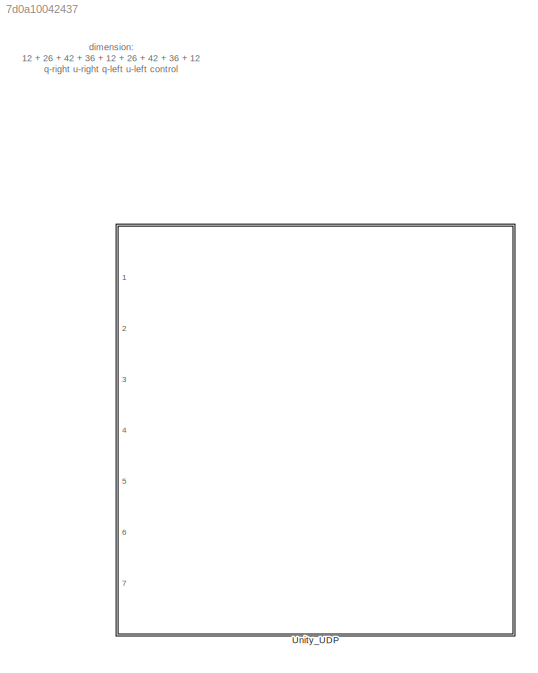
MODEL slx_7d0a10042437
KIND library
CONFIG AbsTol = auto
CONFIG EnableMultiTasking = off
CONFIG FixedStep = auto
CONFIG MaxStep = auto
CONFIG MinStep = auto
CONFIG RelTol = 1e-3
CONFIG SampleTimeConstraint = Unconstrained
CONFIG SolverName = VariableStepAuto
CONFIG StartTime = 0.0
CONFIG StopTime = 10.0
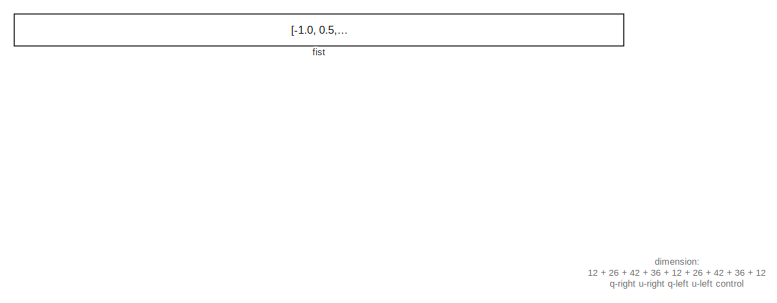
[diagram: Unity_UDP - part 1/2, top left region]
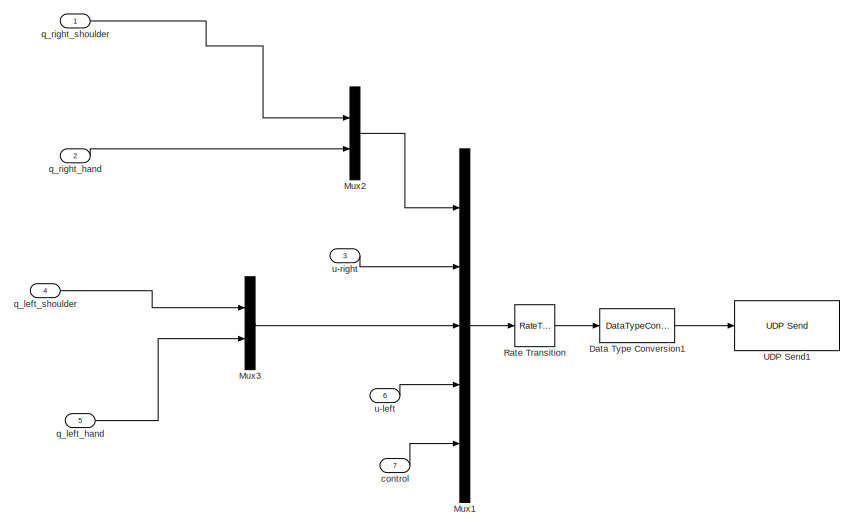
[diagram: Unity_UDP - part 2/2, bottom right region]
BLOCK [SubSystem] Unity_UDP
  Ports = [7]
  RequestExecContextInheritance = off
BLOCK [DataTypeConversion] Unity_UDP/Data Type Conversion1
  OutDataTypeStr = single
  RndMeth = Floor
  SaturateOnIntegerOverflow = off
BLOCK [Mux] Unity_UDP/Mux1
  DisplayOption = bar
  Inputs = [12+26, 42+36, 12+26, 42+36, 12]
  Ports = [5, 1]
BLOCK [Mux] Unity_UDP/Mux2
  DisplayOption = bar
  Inputs = [12, 26]
  Ports = [2, 1]
BLOCK [Mux] Unity_UDP/Mux3
  DisplayOption = bar
  Inputs = [12, 26]
  Ports = [2, 1]
BLOCK [RateTransition] Unity_UDP/Rate Transition
  OutPortSampleTime = sampling_time
BLOCK [Reference] Unity_UDP/UDP Send1  REF=dspnetwork/UDP Send
  Ports = [1]
  SourceBlock = dspnetwork/UDP Send
  SourceProductBaseCode = DS
  SourceType = UDP Send
BLOCK [Inport] Unity_UDP/control
  Port = 7
BLOCK [Constant] Unity_UDP/fist
  Commented = on
  Value = [-1.0, 0.5, 0.5, 0.5, 0, 1,  0, 0.7, 0.7, 0.7, 0, 1.3, 1.3, 1.3, 0, 0, 0, 1.3, 1.3, 1.3, 0, 0, 0, 1.3, 1.3, 1.3]
BLOCK [Inport] Unity_UDP/q_left_hand
  Port = 5
BLOCK [Inport] Unity_UDP/q_left_shoulder
  Port = 4
BLOCK [Inport] Unity_UDP/q_right_hand
  Port = 2
BLOCK [Inport] Unity_UDP/q_right_shoulder
BLOCK [Inport] Unity_UDP/u-left
  Port = 6
BLOCK [Inport] Unity_UDP/u-right
  Port = 3
ANNOTATION (root): dimension: 12 + 26 + 42 + 36 + 12 + 26 + 42 + 36 + 12 q-right u-right q-left u-left control
ANNOTATION Unity_UDP: dimension: 12 + 26 + 42 + 36 + 12 + 26 + 42 + 36 + 12 q-right u-right q-left u-left control
LINE Unity_UDP/Data Type Conversion1:1 -> Unity_UDP/UDP Send1:1
LINE Unity_UDP/Mux1:1 -> Unity_UDP/Rate Transition:1
LINE Unity_UDP/Mux2:1 -> Unity_UDP/Mux1:1
LINE Unity_UDP/Mux3:1 -> Unity_UDP/Mux1:3
LINE Unity_UDP/Rate Transition:1 -> Unity_UDP/Data Type Conversion1:1
LINE Unity_UDP/control:1 -> Unity_UDP/Mux1:5
LINE Unity_UDP/q_left_hand:1 -> Unity_UDP/Mux3:2
LINE Unity_UDP/q_left_shoulder:1 -> Unity_UDP/Mux3:1
LINE Unity_UDP/q_right_hand:1 -> Unity_UDP/Mux2:2
LINE Unity_UDP/q_right_shoulder:1 -> Unity_UDP/Mux2:1
LINE Unity_UDP/u-left:1 -> Unity_UDP/Mux1:4
LINE Unity_UDP/u-right:1 -> Unity_UDP/Mux1:2
